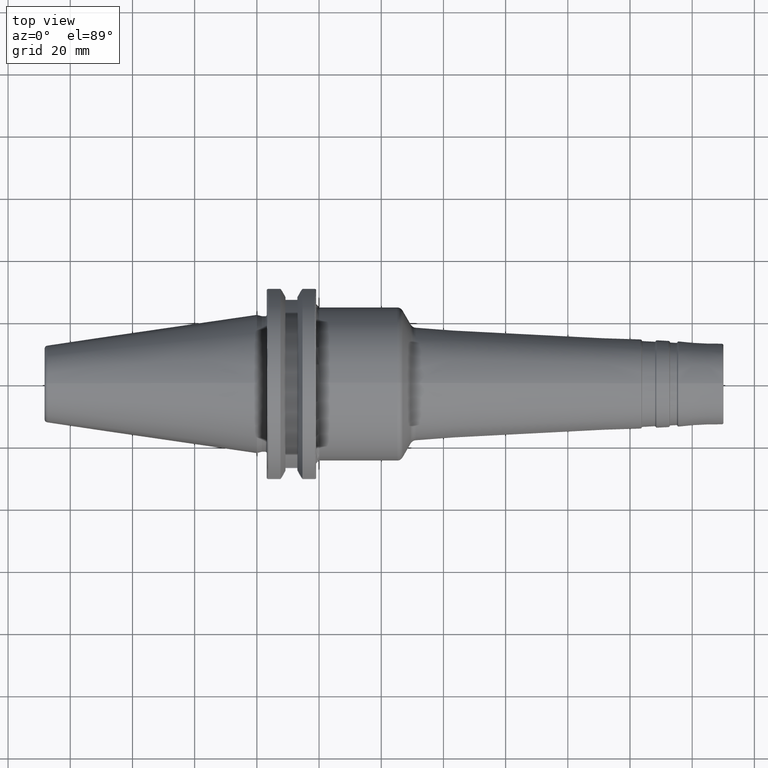
[diagram: clean part render]
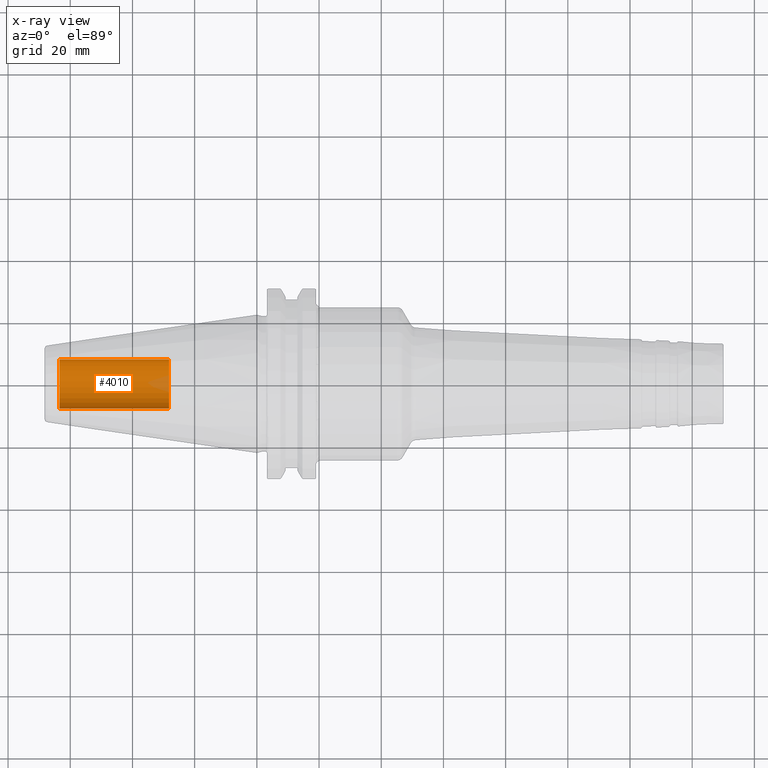
[diagram: x-ray — body ghosted, one internal face saturated and labeled with its STEP entity id]
A machine part, top view, then the same camera in x-ray: the body is ghosted and one INTERNAL B-rep face — a face not visible from any outside direction — is saturated and labeled: STEP entity #4010.
In plain terms, the highlighted cylindrical surface (edge-blend (fillet) strip) has radius 7.9375 mm, axis along (-1, 0, 0).
Its self-contained STEP definition (entity closure, byte-faithful):
#3945=CARTESIAN_POINT('',(-6.345E1,0.E0,0.E0));
#3946=DIRECTION('',(1.E0,0.E0,0.E0));
#3947=DIRECTION('',(0.E0,-1.E0,0.E0));
#3948=AXIS2_PLACEMENT_3D('',#3945,#3946,#3947);
#3955=DIRECTION('',(1.E0,0.E0,0.E0));
#3956=VECTOR('',#3955,3.52E1);
#3957=CARTESIAN_POINT('',(-6.345E1,-7.9375E0,0.E0));
#3958=LINE('',#3957,#3956);
#3959=DIRECTION('',(1.E0,0.E0,0.E0));
#3960=VECTOR('',#3959,3.52E1);
#3961=CARTESIAN_POINT('',(-6.345E1,7.9375E0,0.E0));
#3962=LINE('',#3961,#3960);
#3968=CARTESIAN_POINT('',(-2.825E1,0.E0,0.E0));
#3969=DIRECTION('',(-1.E0,0.E0,0.E0));
#3970=DIRECTION('',(0.E0,1.E0,0.E0));
#3971=AXIS2_PLACEMENT_3D('',#3968,#3969,#3970);
#3983=CARTESIAN_POINT('',(-2.825E1,7.9375E0,0.E0));
#3984=CARTESIAN_POINT('',(-2.825E1,-7.9375E0,0.E0));
#3985=VERTEX_POINT('',#3983);
#3986=VERTEX_POINT('',#3984);
#3987=CARTESIAN_POINT('',(-6.345E1,7.9375E0,0.E0));
#3988=CARTESIAN_POINT('',(-6.345E1,-7.9375E0,0.E0));
#3989=VERTEX_POINT('',#3987);
#3990=VERTEX_POINT('',#3988);
#3995=CARTESIAN_POINT('',(9.506227439634E0,0.E0,0.E0));
#3996=DIRECTION('',(-1.E0,0.E0,0.E0));
#3997=DIRECTION('',(0.E0,1.E0,0.E0));
#3998=AXIS2_PLACEMENT_3D('',#3995,#3996,#3997);
#3999=CYLINDRICAL_SURFACE('',#3998,7.9375E0);
#4001=ORIENTED_EDGE('',*,*,#4000,.T.);
#4003=ORIENTED_EDGE('',*,*,#4002,.T.);
#4005=ORIENTED_EDGE('',*,*,#4004,.T.);
#4007=ORIENTED_EDGE('',*,*,#4006,.F.);
#4008=EDGE_LOOP('',(#4001,#4003,#4005,#4007));
#4009=FACE_OUTER_BOUND('',#4008,.F.);
#4010=ADVANCED_FACE('',(#4009),#3999,.F.);
#3949=CIRCLE('',#3948,7.9375E0);
#3972=CIRCLE('',#3971,7.9375E0);
#4000=EDGE_CURVE('',#3990,#3989,#3949,.T.);
#4002=EDGE_CURVE('',#3989,#3985,#3962,.T.);
#4004=EDGE_CURVE('',#3985,#3986,#3972,.T.);
#4006=EDGE_CURVE('',#3990,#3986,#3958,.T.);